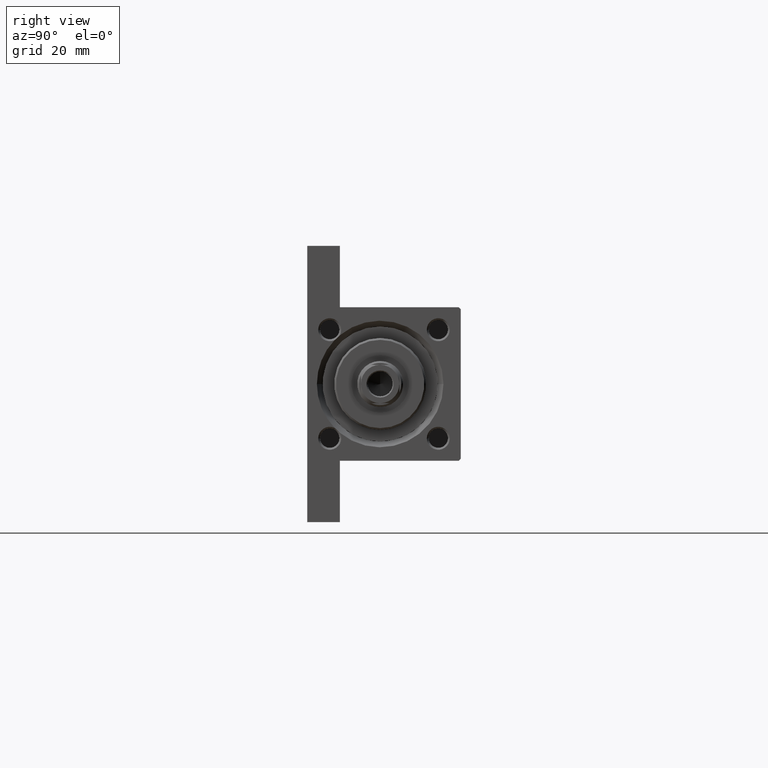
[diagram: clean part render]
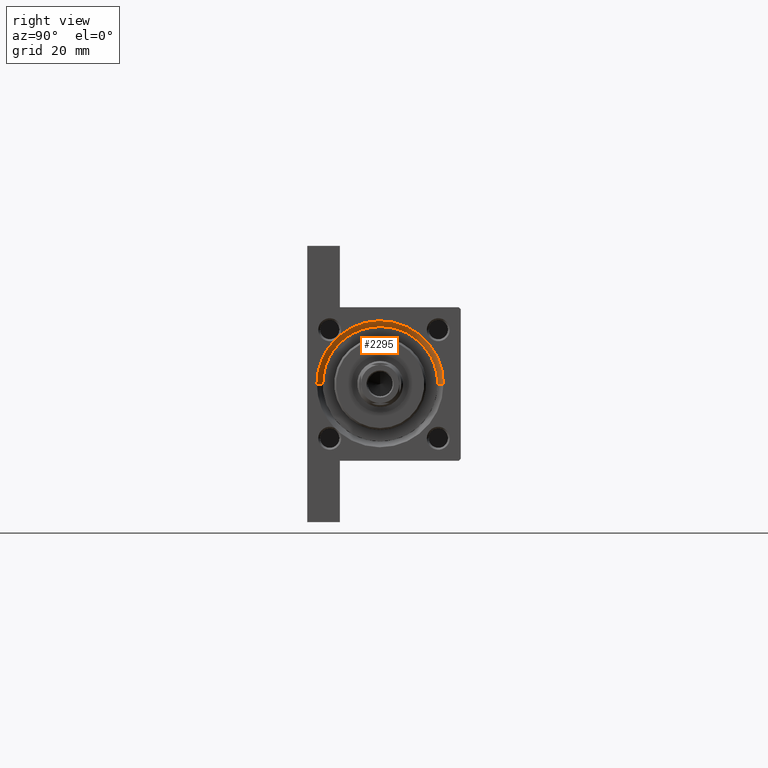
[diagram: same view with one face highlighted and labeled with its STEP entity id]
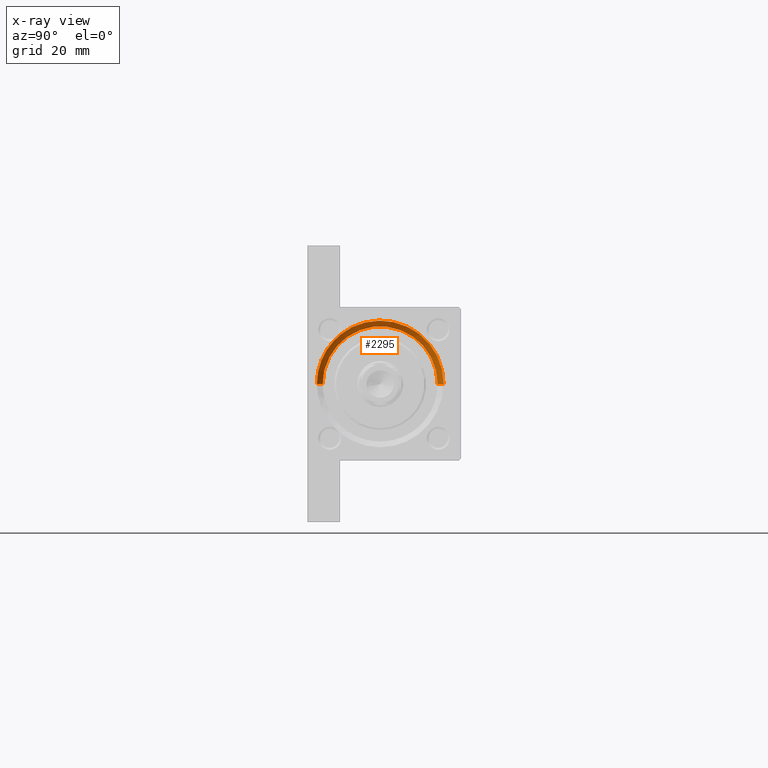
[diagram: x-ray of the same camera — body ghosted, the highlighted face saturated]
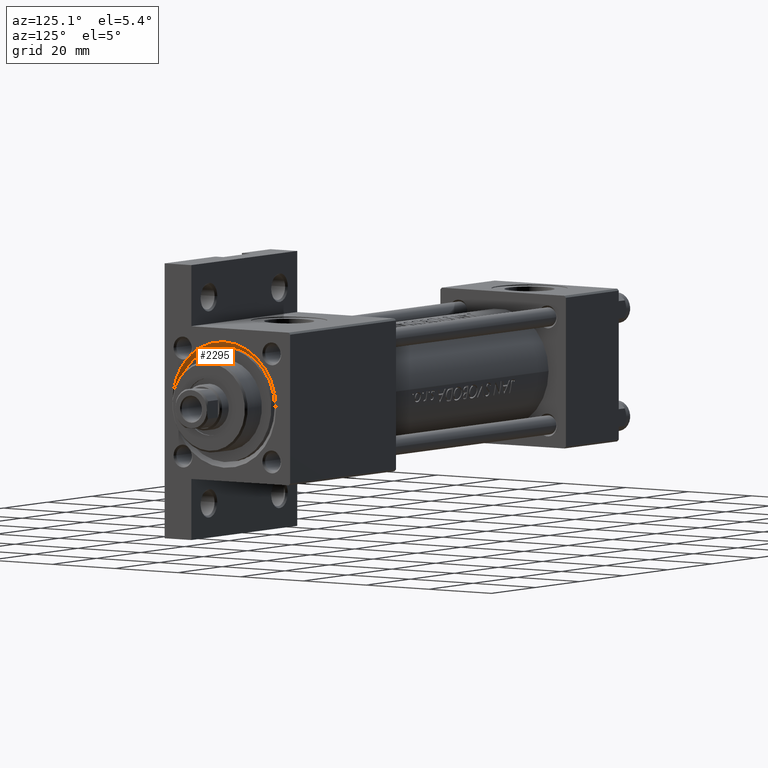
[diagram: same view with one face highlighted and labeled with its STEP entity id]
A machine part, right view. The second image highlights one B-rep face of the part: STEP entity #2295.
The next image is the same camera in x-ray: the body ghosted, the highlighted face saturated — about 0% of this face is hidden behind the body in this view.
A second angle (auxiliary view) of the same face is appended — the face is thin or edge-on in the first view.
In plain terms, the highlighted conical surface has half-angle 45 deg.
Its self-contained STEP definition (entity closure, byte-faithful):
#145 = CARTESIAN_POINT ( 'NONE',  ( 148.9086984327258563, -12.23895966654459500, -11.93411783727697362 ) ) ;
#1645 = CIRCLE ( 'NONE', #46288, 16.49999999999998579 ) ;
#1666 = VECTOR ( 'NONE', #37955, 1000.000000000000114 ) ;
#2295 = ADVANCED_FACE ( 'NONE', ( #4152 ), #25218, .F. ) ;
#2677 = VERTEX_POINT ( 'NONE', #19725 ) ;
#2880 = DIRECTION ( 'NONE',  ( 0.000000000000000000, 0.000000000000000000, 1.000000000000000000 ) ) ;
#4152 = FACE_OUTER_BOUND ( 'NONE', #20889, .T. ) ;
#5697 = EDGE_CURVE ( 'NONE', #17423, #2677, #36060, .T. ) ;
#6359 = CARTESIAN_POINT ( 'NONE',  ( 147.5000000000000284, 1.836970198721029589E-15, 13.99999999999999822 ) ) ;
#6966 = DIRECTION ( 'NONE',  ( -1.000000000000000000, -0.000000000000000000, -0.000000000000000000 ) ) ;
#7881 = ORIENTED_EDGE ( 'NONE', *, *, #5697, .F. ) ;
#7990 = DIRECTION ( 'NONE',  ( 1.000000000000000000, 0.000000000000000000, 0.000000000000000000 ) ) ;
#9832 = DIRECTION ( 'NONE',  ( 0.000000000000000000, 0.000000000000000000, 1.000000000000000000 ) ) ;
#10357 = EDGE_CURVE ( 'NONE', #42436, #13923, #30942, .T. ) ;
#11088 = DIRECTION ( 'NONE',  ( 0.000000000000000000, 0.000000000000000000, 1.000000000000000000 ) ) ;
#11199 = CARTESIAN_POINT ( 'NONE',  ( 149.0000000000000284, -11.41741110086838340, -12.91187322606176124 ) ) ;
#12355 = CARTESIAN_POINT ( 'NONE',  ( 147.5000000000000284, 0.000000000000000000, -16.00000000000000000 ) ) ;
#12915 = VECTOR ( 'NONE', #25198, 1000.000000000000114 ) ;
#12980 = ORIENTED_EDGE ( 'NONE', *, *, #10357, .T. ) ;
#13923 = VERTEX_POINT ( 'NONE', #24977 ) ;
#14475 = AXIS2_PLACEMENT_3D ( 'NONE', #26525, #7990, #37151 ) ;
#14531 = ORIENTED_EDGE ( 'NONE', *, *, #38261, .F. ) ;
#14693 = DIRECTION ( 'NONE',  ( 1.000000000000000000, 0.000000000000000000, 0.000000000000000000 ) ) ;
#14814 = CARTESIAN_POINT ( 'NONE',  ( 148.9082653050945453, -11.80458798180325708, -12.40107693355582619 ) ) ;
#15452 = AXIS2_PLACEMENT_3D ( 'NONE', #36857, #14693, #11088 ) ;
#16778 = CARTESIAN_POINT ( 'NONE',  ( 149.0000000000000284, -12.71526989445512434, -11.51531794627070227 ) ) ;
#17010 = CIRCLE ( 'NONE', #15452, 15.00000000000000000 ) ;
#17423 = VERTEX_POINT ( 'NONE', #12355 ) ;
#17799 = CARTESIAN_POINT ( 'NONE',  ( 149.0000000000000284, 0.000000000000000000, -1.000000000000000888 ) ) ;
#18423 = CARTESIAN_POINT ( 'NONE',  ( 149.0000000000000284, -12.71526989445512434, -11.51531794627070227 ) ) ;
#19725 = CARTESIAN_POINT ( 'NONE',  ( 149.0000000000000284, 0.000000000000000000, -17.49999999999998934 ) ) ;
#20059 = VERTEX_POINT ( 'NONE', #16778 ) ;
#20110 = CARTESIAN_POINT ( 'NONE',  ( 147.5000000000000284, 1.836970198721029589E-15, 13.99999999999999822 ) ) ;
#20391 = ORIENTED_EDGE ( 'NONE', *, *, #37368, .F. ) ;
#20889 = EDGE_LOOP ( 'NONE', ( #22377, #12980, #14531, #31268, #20391, #7881 ) ) ;
#21672 = CIRCLE ( 'NONE', #26271, 16.49999999999998579 ) ;
#22377 = ORIENTED_EDGE ( 'NONE', *, *, #31957, .F. ) ;
#24721 = CARTESIAN_POINT ( 'NONE',  ( 147.5000000000000284, 0.000000000000000000, -16.00000000000000000 ) ) ;
#24977 = CARTESIAN_POINT ( 'NONE',  ( 149.0000000000000284, 2.020667218593131128E-15, 15.49999999999998579 ) ) ;
#25198 = DIRECTION ( 'NONE',  ( 0.7071067811865507924, 0.000000000000000000, -0.7071067811865441310 ) ) ;
#25218 = CONICAL_SURFACE ( 'NONE', #14475, 15.00000000000000000, 0.7853981633974437271 ) ;
#26271 = AXIS2_PLACEMENT_3D ( 'NONE', #17799, #6966, #2880 ) ;
#26525 = CARTESIAN_POINT ( 'NONE',  ( 147.5000000000000284, 0.000000000000000000, -1.000000000000000888 ) ) ;
#29502 = CARTESIAN_POINT ( 'NONE',  ( 148.9398626170886359, -11.60083618806279482, -12.65276146536938384 ) ) ;
#29615 = VERTEX_POINT ( 'NONE', #35693 ) ;
#30942 = LINE ( 'NONE', #20110, #1666 ) ;
#31268 = ORIENTED_EDGE ( 'NONE', *, *, #32198, .T. ) ;
#31957 = EDGE_CURVE ( 'NONE', #42436, #17423, #17010, .T. ) ;
#32198 = EDGE_CURVE ( 'NONE', #20059, #29615, #35405, .T. ) ;
#33113 = CARTESIAN_POINT ( 'NONE',  ( 148.9399059431251828, -12.47044877148102415, -11.71706312667168248 ) ) ;
#35405 = B_SPLINE_CURVE_WITH_KNOTS ( 'NONE', 3,
 ( #18423, #33113, #145, #14814, #29502, #11199 ),
 .UNSPECIFIED., .F., .F.,
 ( 4, 2, 4 ),
 ( 0.000000000000000000, 0.0009549214274697735141, 0.001909842854939547028 ),
 .UNSPECIFIED. ) ;
#35693 = CARTESIAN_POINT ( 'NONE',  ( 149.0000000000000284, -11.41741110086838340, -12.91187322606176124 ) ) ;
#36060 = LINE ( 'NONE', #24721, #12915 ) ;
#36857 = CARTESIAN_POINT ( 'NONE',  ( 147.5000000000000284, 0.000000000000000000, -1.000000000000000888 ) ) ;
#37151 = DIRECTION ( 'NONE',  ( 0.000000000000000000, 0.000000000000000000, -1.000000000000000000 ) ) ;
#37368 = EDGE_CURVE ( 'NONE', #2677, #29615, #1645, .T. ) ;
#37955 = DIRECTION ( 'NONE',  ( 0.7071067811865507924, 8.659560562354892183E-17, 0.7071067811865441310 ) ) ;
#38261 = EDGE_CURVE ( 'NONE', #20059, #13923, #21672, .T. ) ;
#39711 = CARTESIAN_POINT ( 'NONE',  ( 149.0000000000000284, 0.000000000000000000, -1.000000000000000888 ) ) ;
#42436 = VERTEX_POINT ( 'NONE', #6359 ) ;
#46288 = AXIS2_PLACEMENT_3D ( 'NONE', #39711, #46470, #9832 ) ;
#46470 = DIRECTION ( 'NONE',  ( -1.000000000000000000, -0.000000000000000000, -0.000000000000000000 ) ) ;